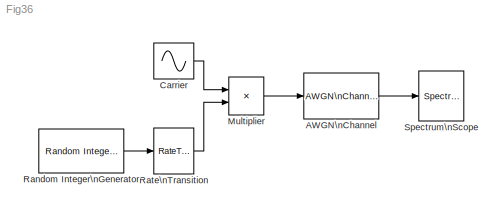
MODEL Fig36
KIND model
BLOCK [Reference] AWGN\nChannel  REF=commchan3/AWGN\nChannel
  EbNodB = 80
  EsNodB = 10
  InputProcessing = Inherited (this choice will be removed - see release notes)
  Ports = [1, 1]
  Ps = 25
  SID = 1
  SNRdB = 10
  SourceBlock = commchan3/AWGN\nChannel
  SourceType = AWGN Channel
  Tsym = 1e-3
  UserData = DataTag0
  UserDataPersistent = on
  bitsPerSym = 1
  noiseMode = Variance from mask
  seed = randseed
  variance = 0
BLOCK [Sin] Carrier
  Amplitude = 5
  Frequency = 40000*pi
  Ports = [0, 1]
  SID = 2
  SampleTime = 2e-6
BLOCK [Product] Multiplier 
  InputSameDT = off
  OutDataTypeStr = Inherit: Inherit via internal rule
  Ports = [2, 1]
  SID = 3
  SaturateOnIntegerOverflow = off
BLOCK [Reference] Random Integer\nGenerator  REF=commrandsrc2/Random Integer\nGenerator
  Ports = [0, 1]
  SID = 4
  SourceBlock = commrandsrc2/Random Integer\nGenerator
  SourceType = Random Integer Generator
  Ts = 1e-3
  frameBased = off
  mul = 2
  orient = on
  outDataType = double
  sampPerFrame = 50
  seed = randseed
BLOCK [RateTransition] Rate\nTransition
  OutPortSampleTime = 2e-6
  SID = 5
BLOCK [SpectrumAnalyzer] Spectrum\nScope
  Ports = [1]
  SID = 6
  ScopeSpecificationString = spbscopes.SpectrumAnalyzerBlockCfg('CurrentConfiguration', extmgr.ConfigurationSet(extmgr.Configuration('Core','General UI',true,'FigureColor',[0.313725490196078 0.313725490196078 0.313725490196078]),extmgr.Configuration('Core','Source UI',true),extmgr.Configuration('Sources','WiredSimulink',true),extmgr.Configuration('Sources','Simulink',false),extmgr.Configuration('Sources','File',false),extmgr....<+7074ch>
LINE AWGN\nChannel:1 -> Spectrum\nScope:1
LINE Carrier:1 -> Multiplier :1
LINE Multiplier :1 -> AWGN\nChannel:1
LINE Random Integer\nGenerator:1 -> Rate\nTransition:1
LINE Rate\nTransition:1 -> Multiplier :2
